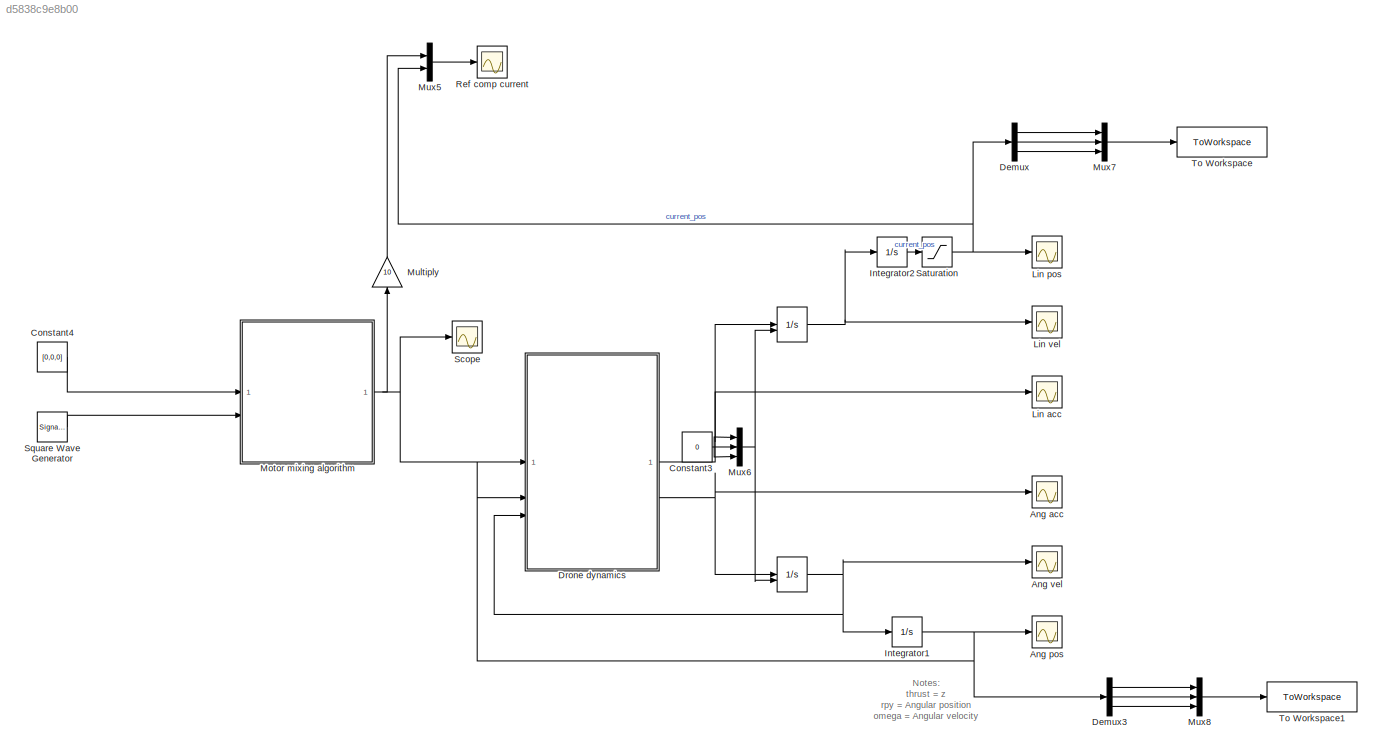
MODEL slx_d5838c9e8b00
KIND model
CONFIG AbsTol = auto
CONFIG EnableMultiTasking = off
CONFIG FixedStep = 0.001
CONFIG MaxStep = auto
CONFIG MinStep = auto
CONFIG RelTol = 1e-3
CONFIG SampleTimeConstraint = Unconstrained
CONFIG SolverName = FixedStepAuto
CONFIG StartTime = 0.0
CONFIG StopTime = 1
WORKSPACE source: mxarray member
WORKSPACE amplitude = 0.05
BLOCK [Integrator]  
  InitialCondition = [0;0;0]
  InitialConditionSource = external
BLOCK [Integrator]   
  InitialCondition = [0;0;0]
  InitialConditionSource = external
BLOCK [Scope] Ang acc
  Floating = off
  NumInputPorts = 1
  ScopeSpecificationString = Simulink.scopes.TimeScopeBlockCfg('CurrentConfiguration', extmgr.ConfigurationSet(extmgr.Configuration('Core','General UI',true),extmgr.Configuration('Core','Source UI',true),extmgr.Configuration('Sources','WiredSimulink',true,'DataLoggingVariableName','ScopeData1'),extmgr.Configuration('Visuals','Time Domain',true),extmgr.Configuration('Tools','Plot Navigation',true),extmgr.Configuration('Tools',...<+40ch>
BLOCK [Scope] Ang pos
  Floating = off
  NumInputPorts = 1
  ScopeSpecificationString = Simulink.scopes.TimeScopeBlockCfg('CurrentConfiguration', extmgr.ConfigurationSet(extmgr.Configuration('Core','General UI',true),extmgr.Configuration('Core','Source UI',true),extmgr.Configuration('Sources','WiredSimulink',true,'DataLoggingVariableName','ScopeData3'),extmgr.Configuration('Visuals','Time Domain',true,'SerializedDisplays',{struct('MinYLimReal','-0.58931','MaxYLimReal','0.6416','YLabe...<+1469ch>
BLOCK [Scope] Ang vel
  Floating = off
  NumInputPorts = 1
  ScopeSpecificationString = Simulink.scopes.TimeScopeBlockCfg('CurrentConfiguration', extmgr.ConfigurationSet(extmgr.Configuration('Core','General UI',true),extmgr.Configuration('Core','Source UI',true),extmgr.Configuration('Sources','WiredSimulink',true,'DataLoggingVariableName','ScopeData2'),extmgr.Configuration('Visuals','Time Domain',true,'SerializedDisplays',{struct('MinYLimReal','-31.97615','MaxYLimReal','52.59137','YL...<+1436ch>
BLOCK [Constant] Constant3
  Value = 0
BLOCK [Constant] Constant4
  Value = [0,0,0]
BLOCK [Demux] Demux
  Outputs = 3
BLOCK [Demux] Demux3
  Outputs = 3
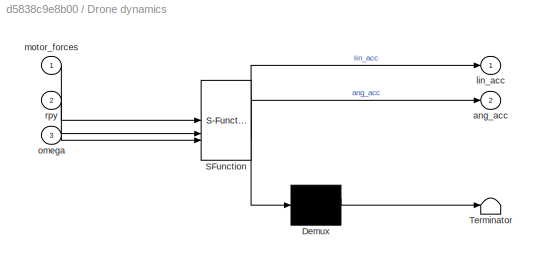
BLOCK [SubSystem] Drone dynamics
  ErrorFcn = Stateflow.Translate.translate
  LibrarySourceBlock = simulink/User-Defined\nFunctions/MATLAB Function
  PermitHierarchicalResolution = ExplicitOnly
  SFBlockType = MATLAB Function
  TreatAsAtomicUnit = on
BLOCK [Demux] Drone dynamics/ Demux 
  Outputs = 1
BLOCK [S-Function] Drone dynamics/ SFunction 
  EnableBusSupport = on
  FunctionName = sf_sfun
  PortCounts = [3 3]
  SFcnIsStateOwnerBlock = off
  SFunctionDeploymentMode = off
  Tag = Stateflow S-Function 2
BLOCK [Terminator] Drone dynamics/ Terminator 
BLOCK [Outport] Drone dynamics/ang_acc
  Port = 2
BLOCK [Outport] Drone dynamics/lin_acc
BLOCK [Inport] Drone dynamics/motor_forces
BLOCK [Inport] Drone dynamics/omega
  Port = 3
BLOCK [Inport] Drone dynamics/rpy
  Port = 2
BLOCK [Integrator] Integrator1
BLOCK [Integrator] Integrator2
BLOCK [Scope] Lin acc
  Floating = off
  NumInputPorts = 1
  ScopeSpecificationString = Simulink.scopes.TimeScopeBlockCfg('CurrentConfiguration', extmgr.ConfigurationSet(extmgr.Configuration('Core','General UI',true),extmgr.Configuration('Core','Source UI',true),extmgr.Configuration('Sources','WiredSimulink',true,'DataLoggingVariableName','ScopeData4'),extmgr.Configuration('Visuals','Time Domain',true,'SerializedDisplays',{struct('MinYLimReal','-0.4453','MaxYLimReal','4.0077','YLabel...<+1486ch>
BLOCK [Scope] Lin pos
  Floating = off
  NumInputPorts = 1
  ScopeSpecificationString = Simulink.scopes.TimeScopeBlockCfg('CurrentConfiguration', extmgr.ConfigurationSet(extmgr.Configuration('Core','General UI',true),extmgr.Configuration('Core','Source UI',true),extmgr.Configuration('Sources','WiredSimulink',true,'DataLoggingVariableName','ScopeData5'),extmgr.Configuration('Visuals','Time Domain',true,'SerializedDisplays',{struct('MinYLimReal','-0.22265','MaxYLimReal','2.00385','YLab...<+1457ch>
BLOCK [Scope] Lin vel
  Floating = off
  NumInputPorts = 1
  ScopeSpecificationString = Simulink.scopes.TimeScopeBlockCfg('CurrentConfiguration', extmgr.ConfigurationSet(extmgr.Configuration('Core','General UI',true),extmgr.Configuration('Core','Source UI',true),extmgr.Configuration('Sources','WiredSimulink',true,'DataLoggingVariableName','ScopeData6'),extmgr.Configuration('Visuals','Time Domain',true,'SerializedDisplays',{struct('MinYLimReal','-3.20269','MaxYLimReal','3.80196','YLab...<+1374ch>
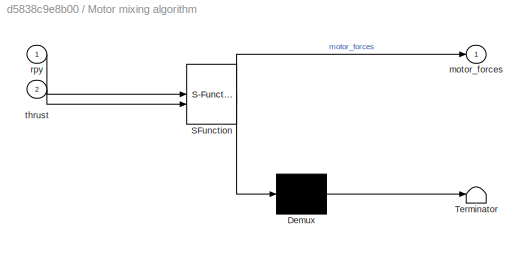
BLOCK [SubSystem] Motor mixing algorithm
  ErrorFcn = Stateflow.Translate.translate
  LibrarySourceBlock = simulink/User-Defined\nFunctions/MATLAB Function
  PermitHierarchicalResolution = ExplicitOnly
  SFBlockType = MATLAB Function
  TreatAsAtomicUnit = on
BLOCK [Demux] Motor mixing algorithm/ Demux 
  Outputs = 1
BLOCK [S-Function] Motor mixing algorithm/ SFunction 
  EnableBusSupport = on
  FunctionName = sf_sfun
  PortCounts = [2 2]
  SFcnIsStateOwnerBlock = off
  SFunctionDeploymentMode = off
  Tag = Stateflow S-Function 1
BLOCK [Terminator] Motor mixing algorithm/ Terminator 
BLOCK [Outport] Motor mixing algorithm/motor_forces
BLOCK [Inport] Motor mixing algorithm/rpy
BLOCK [Inport] Motor mixing algorithm/thrust
  Port = 2
BLOCK [Gain] Multiply
  Gain = 10
  NameLocation = right
BLOCK [Mux] Mux5
  DisplayOption = bar
  Inputs = 2
BLOCK [Mux] Mux6
  DisplayOption = bar
  Inputs = 3
BLOCK [Mux] Mux7
  DisplayOption = bar
  Inputs = 3
BLOCK [Mux] Mux8
  DisplayOption = bar
  Inputs = 3
BLOCK [Scope] Ref comp current
  Floating = off
  NumInputPorts = 1
  ScopeSpecificationString = Simulink.scopes.TimeScopeBlockCfg('CurrentConfiguration', extmgr.ConfigurationSet(extmgr.Configuration('Core','General UI',true),extmgr.Configuration('Core','Source UI',true),extmgr.Configuration('Sources','WiredSimulink',true,'DataLoggingVariableName','ScopeData1'),extmgr.Configuration('Visuals','Time Domain',true,'SerializedDisplays',{struct('MinYLimReal','-0.22265','MaxYLimReal','2.00385','YLab...<+1687ch>
BLOCK [Saturate] Saturation
  LowerLimit = 0
  UpperLimit = inf
BLOCK [Scope] Scope
  Floating = off
  NumInputPorts = 1
  ScopeSpecificationString = Simulink.scopes.TimeScopeBlockCfg('CurrentConfiguration', extmgr.ConfigurationSet(extmgr.Configuration('Core','General UI',true),extmgr.Configuration('Core','Source UI',true),extmgr.Configuration('Sources','WiredSimulink',true,'DataLoggingVariableName','ScopeData1'),extmgr.Configuration('Visuals','Time Domain',true,'SerializedDisplays',{struct('MinYLimReal','-0.02499','MaxYLimReal','0.22491','YLab...<+1558ch>
BLOCK [SignalGenerator] Square Wave Generator
  Amplitude = -0.1
  Units = rad/sec
  WaveForm = square
BLOCK [ToWorkspace] To Workspace
  FixptAsFi = on
  MaxDataPoints = inf
  SampleTime = -1
  VariableName = XYZ
BLOCK [ToWorkspace] To Workspace1
  FixptAsFi = on
  MaxDataPoints = inf
  SampleTime = -1
  VariableName = RPY
ANNOTATION (root): Notes: thrust = z rpy = Angular position omega = Angular velocity
NET   :1 -> Ang vel:1, Drone dynamics:3, Integrator1:1
NET  :1 -> Integrator2:1, Lin vel:1
NET Constant3:1 -> Mux6:1, Mux6:2, Mux6:3
LINE Constant4:1 -> Motor mixing algorithm:1
LINE Demux3:1 -> Mux8:1
LINE Demux3:2 -> Mux8:2
LINE Demux3:3 -> Mux8:3
LINE Demux:1 -> Mux7:1
LINE Demux:2 -> Mux7:2
LINE Demux:3 -> Mux7:3
NET Drone dynamics:1 ->  :1, Lin acc:1
NET Drone dynamics:2 ->   :1, Ang acc:1
NET Integrator1:1 -> Ang pos:1, Demux3:1, Drone dynamics:2
LINE Integrator2:1 -> Saturation:1
NET Motor mixing algorithm:1 -> Drone dynamics:1, Multiply:1, Scope:1
LINE Multiply:1 -> Mux5:1
LINE Mux5:1 -> Ref comp current:1
NET Mux6:1 ->   :2,  :2
LINE Mux7:1 -> To Workspace:1
LINE Mux8:1 -> To Workspace1:1
NET Saturation:1 -> Demux:1, Lin pos:1, Mux5:2
LINE Square Wave Generator:1 -> Motor mixing algorithm:2
note: NET lines group one-source signal fan-out (src -> all destinations, sorted); 1:1 wires keep LINE
CHART Motor mixing algorithm states=1 transitions=1
  STATE_LABEL 'eML_blk_kernel()'
  STATE_LABEL 'SCRIPT:\nfunction motor_forces = fcn(rpy, thrust)\n\n% r = rpy(1);\n% p = rpy(2);\n% y = rpy(3);\n% \n% motor_forces = ...\n% [sum([r   p   y thrust]); ...\n% sum([-r   p  -y thrust]);   ...\n% sum([-r  -p   y thrust]);   ...\n% sum([ r  -p  -y thrust])];\n\nm1 = thrust + rpy(1) - rpy(2) - rpy(3);\nm2 = thrust - rpy(1) - rpy(2) + rpy(3);\nm3 = thrust - rpy(1) + rpy(2) - rpy(3);\nm4 = thrust + rpy(1) + rpy(2) + rp...<+38ch>'
CHART Drone dynamics states=1 transitions=1
  STATE_LABEL 'eML_blk_kernel()'
  STATE_LABEL 'SCRIPT:\nfunction [lin_acc, ang_acc] = quad_dynamics(motor_forces, rpy, omega)\n\n\n\n%% Define constants\nrotor_dist = 0.04; %m\nbody_mass = 0.02989; %kg\ng_constant = [0;0;-9.82]; %Nm/s^2\n\n\n\n\n% Vectors from CoM to motors\n% We create a X-configured drone\nrotor_angle = pi/4;\ns1 = [cos(rotor_angle); sin(rotor_angle); 0] * rotor_dist;\ns2 = [cos(rotor_angle); -sin(rotor_angle); 0] * rotor_dist;\ns3 = [-cos(ro...<+1468ch>'
CHART  states=0 transitions=0
CHART  states=0 transitions=0
